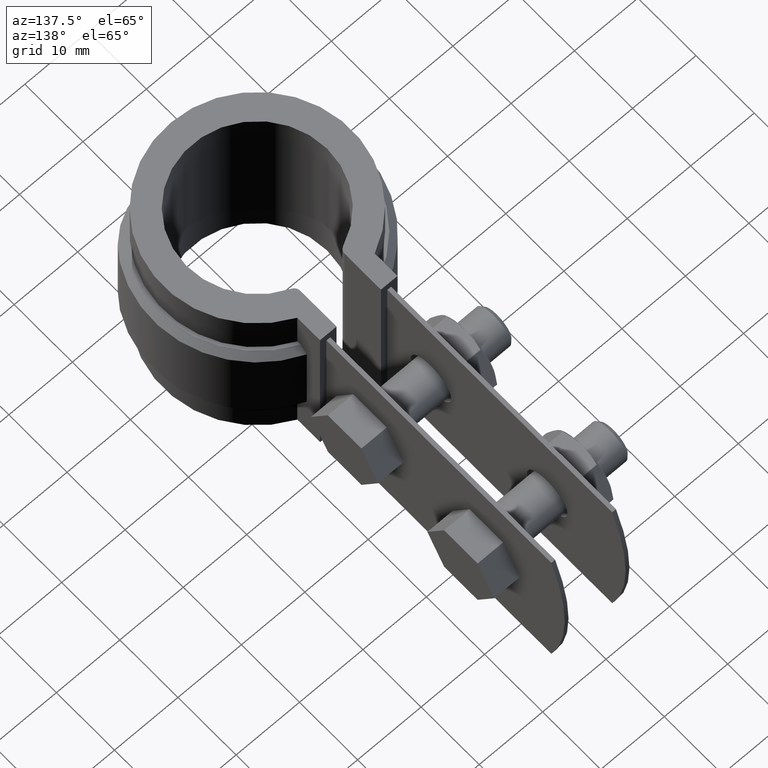
[diagram: clean part render]
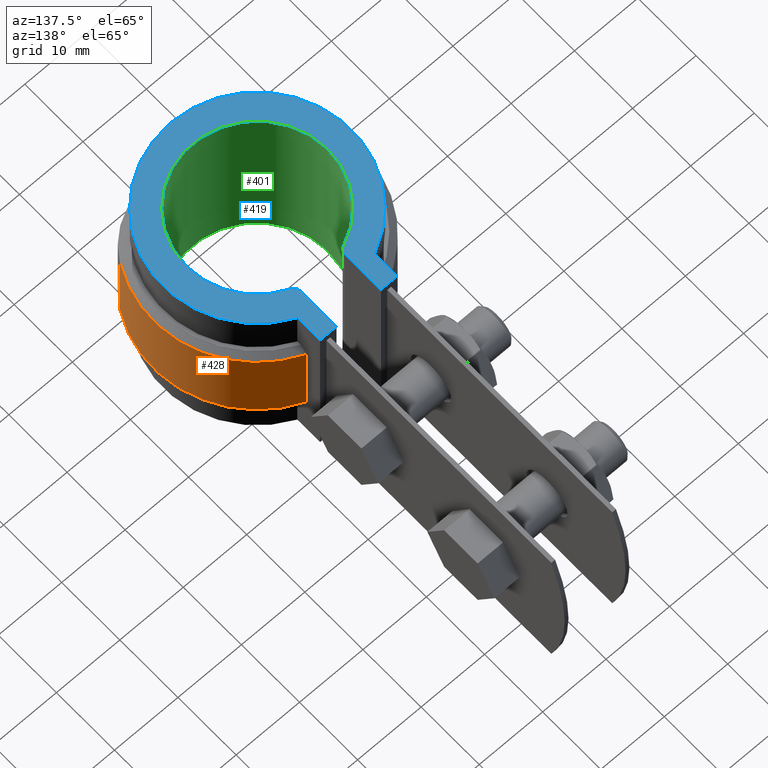
[diagram: same view with three faces highlighted in distinct colors, each labeled with its STEP entity id]
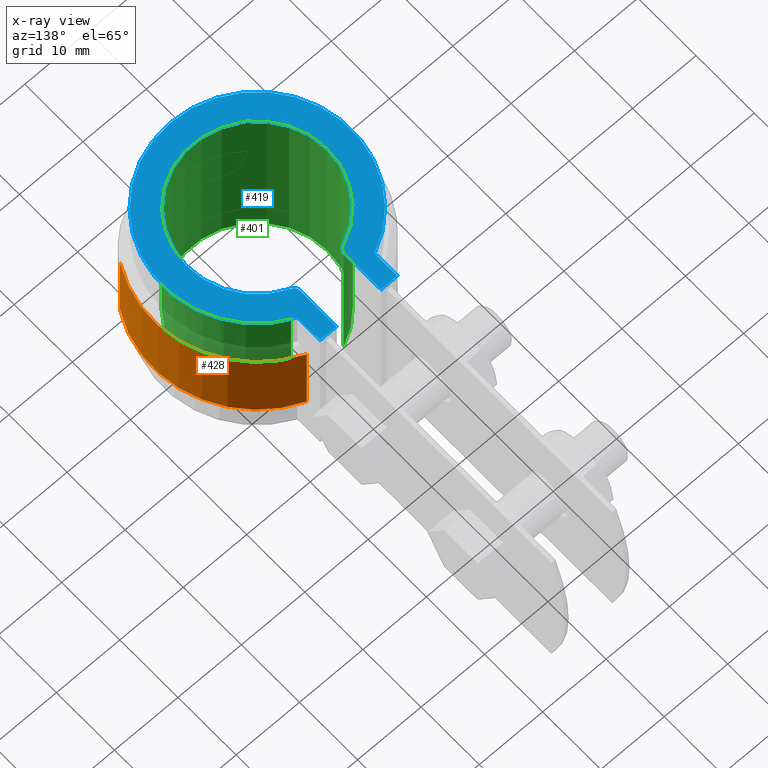
[diagram: x-ray of the same camera — body ghosted, the three highlighted faces saturated]
A machine part, auxiliary view with three faces highlighted in distinct colors.
The next image is the same camera in x-ray (body ghosted, the three faces saturated) — at least one of them is partly hidden behind the body in this view.
Their STEP definitions:

[orange] entity #428 — the highlighted cylindrical surface (partial cylindrical patch) has radius 16.355 mm, axis along (0, 0, -1).
#428 = ADVANCED_FACE( '', ( #742 ), #743, .T. );
#742 = FACE_OUTER_BOUND( '', #1528, .T. );
#743 = CYLINDRICAL_SURFACE( '', #1529, 16.3550000000000 );
#1528 = EDGE_LOOP( '', ( #3609, #3610, #3611, #3612 ) );
#1529 = AXIS2_PLACEMENT_3D( '', #3613, #3614, #3615 );
#3609 = ORIENTED_EDGE( '', *, *, #4463, .F. );
#3610 = ORIENTED_EDGE( '', *, *, #4479, .T. );
#3611 = ORIENTED_EDGE( '', *, *, #4485, .F. );
#3612 = ORIENTED_EDGE( '', *, *, #4473, .T. );
#3613 = CARTESIAN_POINT( '', ( 0.000000000000000, 0.000000000000000, -20.0000000000000 ) );
#3614 = DIRECTION( '', ( 0.000000000000000, 0.000000000000000, -1.00000000000000 ) );
#3615 = DIRECTION( '', ( 0.311831244267808, 0.950137503258550, 0.000000000000000 ) );
#4463 = EDGE_CURVE( '', #5178, #5180, #5181, .F. );
#4473 = EDGE_CURVE( '', #5191, #5180, #5195, .T. );
#4479 = EDGE_CURVE( '', #5178, #5197, #5203, .F. );
#4485 = EDGE_CURVE( '', #5191, #5197, #5209, .T. );
#5178 = VERTEX_POINT( '', #7473 );
#5180 = VERTEX_POINT( '', #7478 );
#5181 = LINE( '', #7479, #7480 );
#5191 = VERTEX_POINT( '', #7495 );
#5195 = CIRCLE( '', #7500, 16.3550000000000 );
#5197 = VERTEX_POINT( '', #7502 );
#5203 = CIRCLE( '', #7509, 16.3550000000000 );
#5209 = LINE( '', #7520, #7521 );
#7473 = CARTESIAN_POINT( '', ( 6.10000000000001, 15.1748484341690, -6.00000000000000 ) );
#7478 = CARTESIAN_POINT( '', ( 6.10000000000001, 15.1748484341690, -19.0000000000000 ) );
#7479 = CARTESIAN_POINT( '', ( 6.10000000000001, 15.1748484341690, -20.0000000000000 ) );
#7480 = VECTOR( '', #8332, 1000.00000000000 );
#7495 = CARTESIAN_POINT( '', ( 14.1597412067696, -8.18460469157254, -19.0000000000000 ) );
#7500 = AXIS2_PLACEMENT_3D( '', #8351, #8352, #8353 );
#7502 = CARTESIAN_POINT( '', ( 14.1597412067696, -8.18460469157254, -6.00000000000000 ) );
#7509 = AXIS2_PLACEMENT_3D( '', #8367, #8368, #8369 );
#7520 = CARTESIAN_POINT( '', ( 14.1597412067696, -8.18460469157254, -20.0000000000000 ) );
#7521 = VECTOR( '', #8375, 1000.00000000000 );
#8332 = DIRECTION( '', ( 0.000000000000000, 0.000000000000000, 1.00000000000000 ) );
#8351 = CARTESIAN_POINT( '', ( 0.000000000000000, 0.000000000000000, -19.0000000000000 ) );
#8352 = DIRECTION( '', ( 0.000000000000000, 0.000000000000000, 1.00000000000000 ) );
#8353 = DIRECTION( '', ( 1.00000000000000, 0.000000000000000, 0.000000000000000 ) );
#8367 = CARTESIAN_POINT( '', ( 0.000000000000000, 0.000000000000000, -6.00000000000000 ) );
#8368 = DIRECTION( '', ( 0.000000000000000, 0.000000000000000, 1.00000000000000 ) );
#8369 = DIRECTION( '', ( 1.00000000000000, 0.000000000000000, 0.000000000000000 ) );
#8375 = DIRECTION( '', ( 0.000000000000000, 0.000000000000000, 1.00000000000000 ) );

[blue] entity #419 — the highlighted planar face has unit normal (0, 0, -1).
#419 = ADVANCED_FACE( '', ( #723 ), #724, .F. );
#723 = FACE_OUTER_BOUND( '', #1509, .T. );
#724 = PLANE( '', #1510 );
#1509 = EDGE_LOOP( '', ( #3536, #3537, #3538, #3539, #3540, #3541, #3542, #3543, #3544, #3545 ) );
#1510 = AXIS2_PLACEMENT_3D( '', #3546, #3547, #3548 );
#3536 = ORIENTED_EDGE( '', *, *, #4303, .F. );
#3537 = ORIENTED_EDGE( '', *, *, #4298, .F. );
#3538 = ORIENTED_EDGE( '', *, *, #4447, .F. );
#3539 = ORIENTED_EDGE( '', *, *, #4460, .F. );
#3540 = ORIENTED_EDGE( '', *, *, #4480, .F. );
#3541 = ORIENTED_EDGE( '', *, *, #4453, .T. );
#3542 = ORIENTED_EDGE( '', *, *, #4430, .T. );
#3543 = ORIENTED_EDGE( '', *, *, #4435, .F. );
#3544 = ORIENTED_EDGE( '', *, *, #4432, .T. );
#3545 = ORIENTED_EDGE( '', *, *, #4440, .T. );
#3546 = CARTESIAN_POINT( '', ( -6.50000000000000, 12.7485724691042, 1.50000000000000 ) );
#3547 = DIRECTION( '', ( 0.000000000000000, 0.000000000000000, -1.00000000000000 ) );
#3548 = DIRECTION( '', ( 0.000000000000000, 1.00000000000000, 0.000000000000000 ) );
#4298 = EDGE_CURVE( '', #4902, #4888, #4904, .T. );
#4303 = EDGE_CURVE( '', #4888, #4913, #4914, .T. );
#4430 = EDGE_CURVE( '', #5126, #5124, #5127, .F. );
#4432 = EDGE_CURVE( '', #5129, #5130, #5131, .F. );
#4435 = EDGE_CURVE( '', #5129, #5124, #5134, .F. );
#4440 = EDGE_CURVE( '', #5130, #4913, #5143, .T. );
#4447 = EDGE_CURVE( '', #5155, #4902, #5157, .T. );
#4453 = EDGE_CURVE( '', #5165, #5126, #5166, .T. );
#4460 = EDGE_CURVE( '', #5173, #5155, #5175, .T. );
#4480 = EDGE_CURVE( '', #5165, #5173, #5204, .T. );
#4888 = VERTEX_POINT( '', #6428 );
#4902 = VERTEX_POINT( '', #6453 );
#4904 = LINE( '', #6456, #6457 );
#4913 = VERTEX_POINT( '', #6470 );
#4914 = LINE( '', #6471, #6472 );
#5124 = VERTEX_POINT( '', #7391 );
#5126 = VERTEX_POINT( '', #7394 );
#5127 = CIRCLE( '', #7395, 1.00000000000000 );
#5129 = VERTEX_POINT( '', #7398 );
#5130 = VERTEX_POINT( '', #7399 );
#5131 = CIRCLE( '', #7400, 1.00000000000000 );
#5134 = CIRCLE( '', #7405, 11.1100000000000 );
#5143 = LINE( '', #7418, #7419 );
#5155 = VERTEX_POINT( '', #7438 );
#5157 = CIRCLE( '', #7441, 14.8550000000000 );
#5165 = VERTEX_POINT( '', #7454 );
#5166 = LINE( '', #7455, #7456 );
#5173 = VERTEX_POINT( '', #7465 );
#5175 = LINE( '', #7468, #7469 );
#5204 = LINE( '', #7510, #7511 );
#6428 = CARTESIAN_POINT( '', ( -6.09999999999999, 17.4580146622341, 1.50000000000000 ) );
#6453 = CARTESIAN_POINT( '', ( -6.09999999999998, 13.5447785142467, 1.50000000000000 ) );
#6456 = CARTESIAN_POINT( '', ( -6.10000000000000, 13.5447785142467, 1.50000000000000 ) );
#6457 = VECTOR( '', #8146, 1000.00000000000 );
#6470 = CARTESIAN_POINT( '', ( -3.49999999999999, 17.4580146622341, 1.50000000000000 ) );
#6471 = CARTESIAN_POINT( '', ( -6.50000000000000, 17.4580146622341, 1.50000000000000 ) );
#6472 = VECTOR( '', #8151, 1000.00000000000 );
#7391 = CARTESIAN_POINT( '', ( 4.12840627580512, 10.3144734049729, 1.50000000000000 ) );
#7394 = CARTESIAN_POINT( '', ( 3.50000000000000, 11.2428688509650, 1.50000000000000 ) );
#7395 = AXIS2_PLACEMENT_3D( '', #8278, #8279, #8280 );
#7398 = CARTESIAN_POINT( '', ( -4.12840627580511, 10.3144734049729, 1.50000000000000 ) );
#7399 = CARTESIAN_POINT( '', ( -3.49999999999999, 11.2428688509650, 1.50000000000000 ) );
#7400 = AXIS2_PLACEMENT_3D( '', #8282, #8283, #8284 );
#7405 = AXIS2_PLACEMENT_3D( '', #8287, #8288, #8289 );
#7418 = CARTESIAN_POINT( '', ( -3.49999999999999, 10.5390239111599, 1.50000000000000 ) );
#7419 = VECTOR( '', #8297, 1000.00000000000 );
#7438 = CARTESIAN_POINT( '', ( 6.10000000000001, 13.5447785142467, 1.50000000000000 ) );
#7441 = AXIS2_PLACEMENT_3D( '', #8306, #8307, #8308 );
#7454 = CARTESIAN_POINT( '', ( 3.50000000000000, 17.4580146622341, 1.50000000000000 ) );
#7455 = CARTESIAN_POINT( '', ( 3.50000000000000, 18.2900000000000, 1.50000000000000 ) );
#7456 = VECTOR( '', #8317, 1000.00000000000 );
#7465 = CARTESIAN_POINT( '', ( 6.09999999999999, 17.4580146622341, 1.50000000000000 ) );
#7468 = CARTESIAN_POINT( '', ( 6.10000000000001, 18.2900000000000, 1.50000000000000 ) );
#7469 = VECTOR( '', #8330, 1000.00000000000 );
#7510 = CARTESIAN_POINT( '', ( -6.50000000000000, 17.4580146622341, 1.50000000000000 ) );
#7511 = VECTOR( '', #8370, 1000.00000000000 );
#8146 = DIRECTION( '', ( 6.07153216591882E-017, 1.00000000000000, 0.000000000000000 ) );
#8151 = DIRECTION( '', ( 1.00000000000000, 0.000000000000000, 0.000000000000000 ) );
#8278 = CARTESIAN_POINT( '', ( 4.50000000000000, 11.2428688509650, 1.50000000000000 ) );
#8279 = DIRECTION( '', ( 0.000000000000000, 0.000000000000000, -1.00000000000000 ) );
#8280 = DIRECTION( '', ( -1.00000000000000, 0.000000000000000, 0.000000000000000 ) );
#8282 = CARTESIAN_POINT( '', ( -4.49999999999999, 11.2428688509650, 1.50000000000000 ) );
#8283 = DIRECTION( '', ( 0.000000000000000, 0.000000000000000, -1.00000000000000 ) );
#8284 = DIRECTION( '', ( -1.00000000000000, 0.000000000000000, 0.000000000000000 ) );
#8287 = CARTESIAN_POINT( '', ( 0.000000000000000, 0.000000000000000, 1.50000000000000 ) );
#8288 = DIRECTION( '', ( 0.000000000000000, 0.000000000000000, -1.00000000000000 ) );
#8289 = DIRECTION( '', ( -1.00000000000000, 0.000000000000000, 0.000000000000000 ) );
#8297 = DIRECTION( '', ( 6.07153216591882E-017, 1.00000000000000, 0.000000000000000 ) );
#8306 = CARTESIAN_POINT( '', ( 0.000000000000000, 0.000000000000000, 1.50000000000000 ) );
#8307 = DIRECTION( '', ( 0.000000000000000, 0.000000000000000, -1.00000000000000 ) );
#8308 = DIRECTION( '', ( 1.00000000000000, 0.000000000000000, 0.000000000000000 ) );
#8317 = DIRECTION( '', ( -6.07153216591882E-017, -1.00000000000000, 0.000000000000000 ) );
#8330 = DIRECTION( '', ( -6.07153216591882E-017, -1.00000000000000, 0.000000000000000 ) );
#8370 = DIRECTION( '', ( 1.00000000000000, 0.000000000000000, 0.000000000000000 ) );

[green] entity #401 — the highlighted cylindrical surface (partial cylindrical patch) has radius 11.11 mm, axis along (0, 0, -1).
#401 = ADVANCED_FACE( '', ( #687 ), #688, .F. );
#687 = FACE_OUTER_BOUND( '', #1473, .T. );
#688 = CYLINDRICAL_SURFACE( '', #1474, 11.1100000000000 );
#1473 = EDGE_LOOP( '', ( #3392, #3393, #3394, #3395 ) );
#1474 = AXIS2_PLACEMENT_3D( '', #3396, #3397, #3398 );
#3392 = ORIENTED_EDGE( '', *, *, #4284, .F. );
#3393 = ORIENTED_EDGE( '', *, *, #4433, .T. );
#3394 = ORIENTED_EDGE( '', *, *, #4435, .T. );
#3395 = ORIENTED_EDGE( '', *, *, #4429, .T. );
#3396 = CARTESIAN_POINT( '', ( 0.000000000000000, 0.000000000000000, -57.2345753270920 ) );
#3397 = DIRECTION( '', ( 0.000000000000000, 0.000000000000000, -1.00000000000000 ) );
#3398 = DIRECTION( '', ( -1.00000000000000, 0.000000000000000, 0.000000000000000 ) );
#4284 = EDGE_CURVE( '', #4875, #4877, #4878, .F. );
#4429 = EDGE_CURVE( '', #5124, #4877, #5125, .F. );
#4433 = EDGE_CURVE( '', #4875, #5129, #5132, .T. );
#4435 = EDGE_CURVE( '', #5129, #5124, #5134, .F. );
#4875 = VERTEX_POINT( '', #6412 );
#4877 = VERTEX_POINT( '', #6414 );
#4878 = CIRCLE( '', #6415, 11.1100000000000 );
#5124 = VERTEX_POINT( '', #7391 );
#5125 = LINE( '', #7392, #7393 );
#5129 = VERTEX_POINT( '', #7398 );
#5132 = LINE( '', #7401, #7402 );
#5134 = CIRCLE( '', #7405, 11.1100000000000 );
#6412 = CARTESIAN_POINT( '', ( -4.12840627580511, 10.3144734049729, -26.5000000000000 ) );
#6414 = CARTESIAN_POINT( '', ( 4.12840627580512, 10.3144734049729, -26.5000000000000 ) );
#6415 = AXIS2_PLACEMENT_3D( '', #8128, #8129, #8130 );
#7391 = CARTESIAN_POINT( '', ( 4.12840627580512, 10.3144734049729, 1.50000000000000 ) );
#7392 = CARTESIAN_POINT( '', ( 4.12840627580512, 10.3144734049729, -57.2345753270920 ) );
#7393 = VECTOR( '', #8277, 1000.00000000000 );
#7398 = CARTESIAN_POINT( '', ( -4.12840627580511, 10.3144734049729, 1.50000000000000 ) );
#7401 = CARTESIAN_POINT( '', ( -4.12840627580511, 10.3144734049729, -57.2345753270920 ) );
#7402 = VECTOR( '', #8285, 1000.00000000000 );
#7405 = AXIS2_PLACEMENT_3D( '', #8287, #8288, #8289 );
#8128 = CARTESIAN_POINT( '', ( 0.000000000000000, 0.000000000000000, -26.5000000000000 ) );
#8129 = DIRECTION( '', ( 0.000000000000000, 0.000000000000000, -1.00000000000000 ) );
#8130 = DIRECTION( '', ( -1.00000000000000, 0.000000000000000, 0.000000000000000 ) );
#8277 = DIRECTION( '', ( 0.000000000000000, 0.000000000000000, 1.00000000000000 ) );
#8285 = DIRECTION( '', ( 0.000000000000000, 0.000000000000000, 1.00000000000000 ) );
#8287 = CARTESIAN_POINT( '', ( 0.000000000000000, 0.000000000000000, 1.50000000000000 ) );
#8288 = DIRECTION( '', ( 0.000000000000000, 0.000000000000000, -1.00000000000000 ) );
#8289 = DIRECTION( '', ( -1.00000000000000, 0.000000000000000, 0.000000000000000 ) );